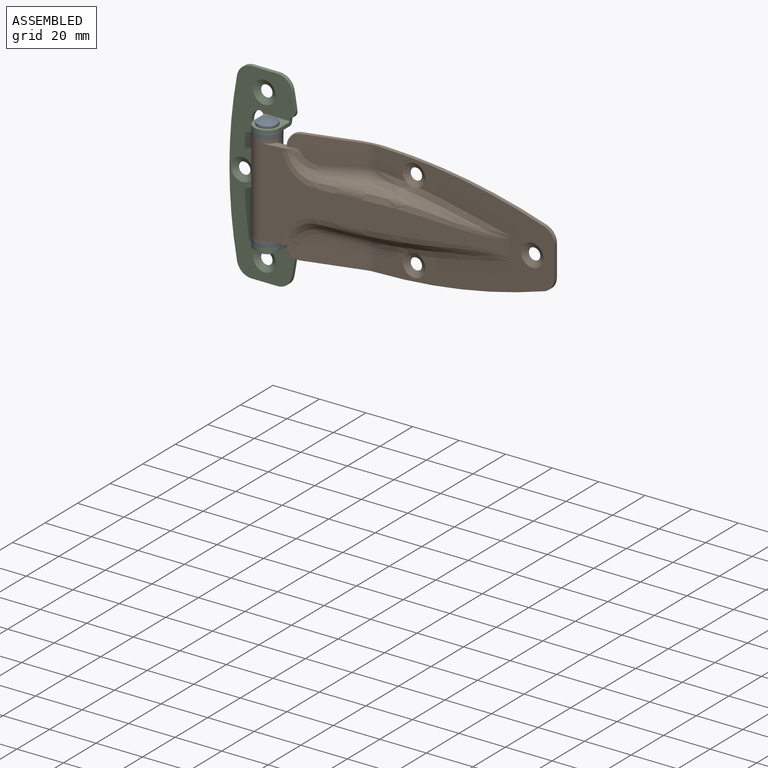
[diagram: assembled view]
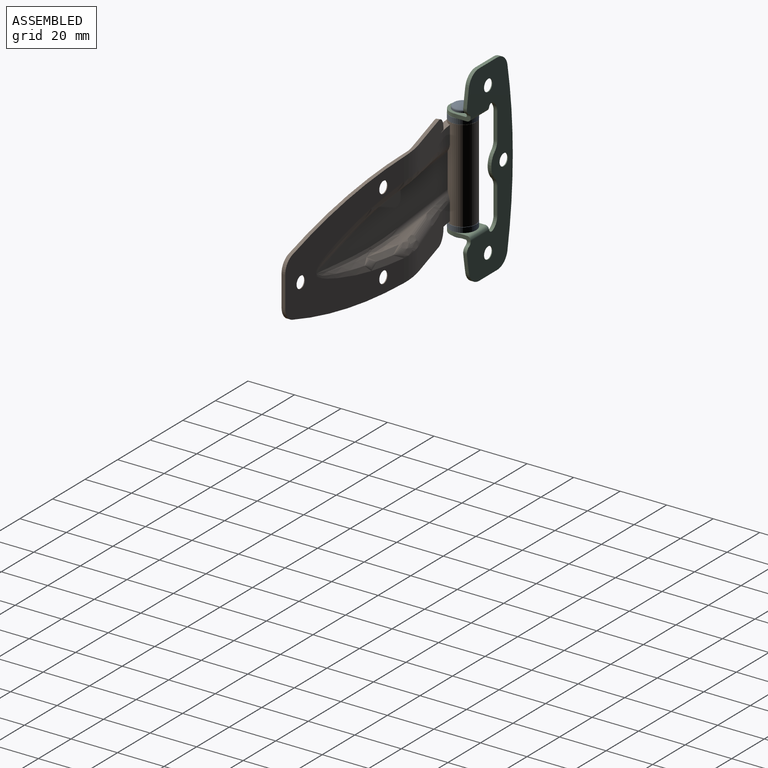
[diagram: assembled view, second angle]
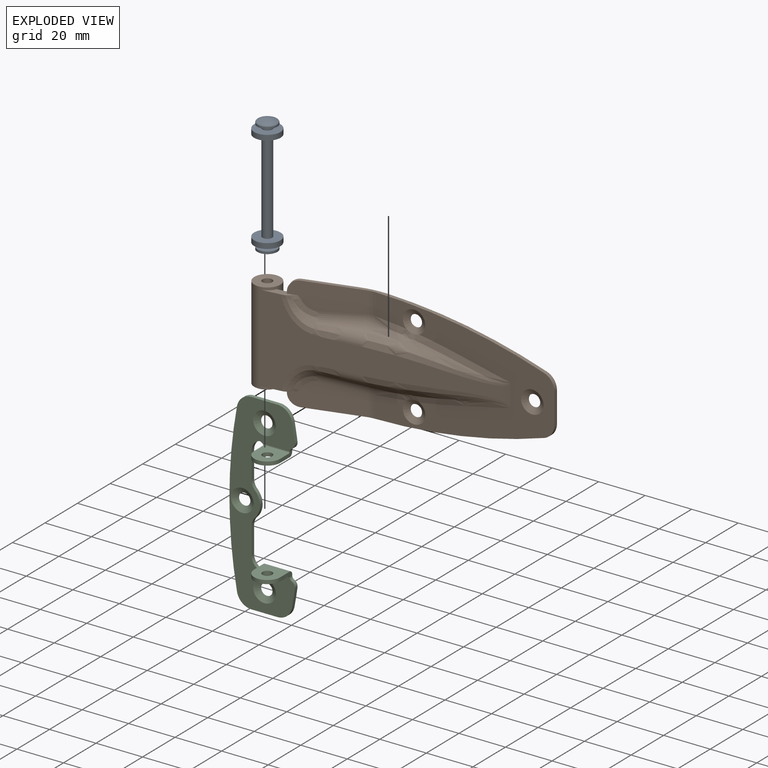
[diagram: exploded view]
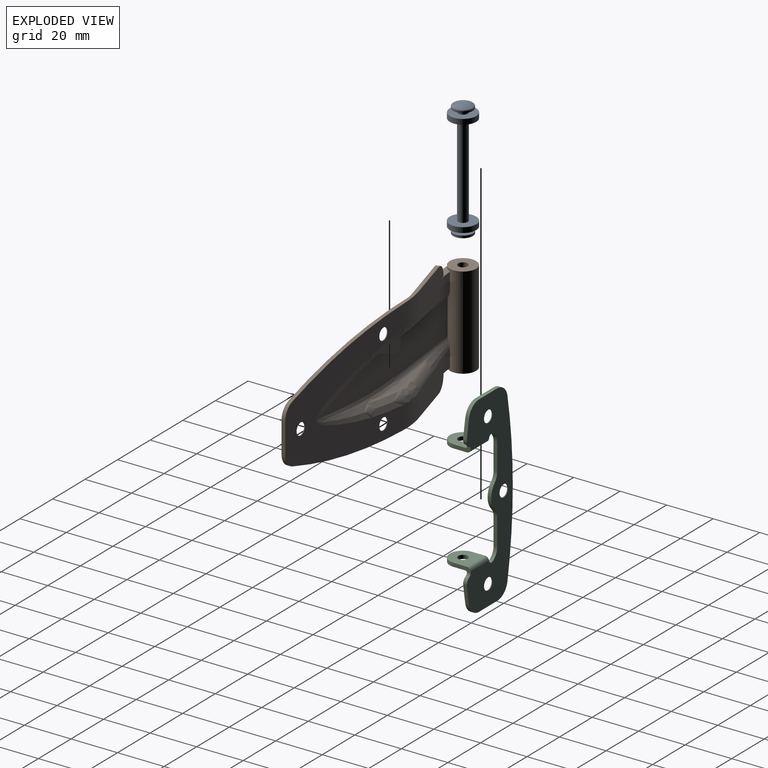
[diagram: exploded view, second angle]
ASSEMBLY  parts=3 mates=2
PART A: 16 faces, bbox 11.4x11.4x52 mm
  f0: plane 11.35x11.35mm, normal (0,0,1), area 87.4mm2, adj f1,f15
  f1: cylinder r=2.1mm len=39.81mm, axis (0,0,1), area 524.2mm2, adj f0,f2
  f2: plane 11.35x11.35mm, normal (0,0,-1), area 87.4mm2, adj f1,f3
  f3: cylinder r=5.68mm len=11.35mm, axis (0,0,1), area 80.4mm2, adj f2,f4
  f4: plane 11.35x11.35mm, normal (0,0,1), area 87.4mm2, adj f3,f5
  f5: cylinder r=2.1mm len=4.19mm, axis (0,0,1), area 21.7mm2, adj f4,f6
  f6: plane 8.53x8.53mm, normal (0,0,-1), area 43.4mm2, adj f5,f7
  f7: cylinder r=4.27mm len=8.53mm, axis (0,0,1), area 17.4mm2, adj f6,f8
  f8: torus R=3.63mm, axis (0,0,1), area 17.8mm2, adj f7,f9
  f9: sphere r=8.22mm, area 51.8mm2, adj f8
  f10: sphere r=8.22mm, area 61.7mm2, adj f11
  f11: cylinder r=4.27mm len=8.53mm, axis (0,0,1), area 27.2mm2, adj f10,f12
  f12: plane 8.53x8.53mm, normal (0,0,1), area 43.4mm2, adj f11,f13
  f13: cylinder r=2.1mm len=4.19mm, axis (0,0,1), area 21.7mm2, adj f12,f14
  f14: plane 11.35x11.35mm, normal (0,0,-1), area 87.4mm2, adj f13,f15
  f15: cylinder r=5.68mm len=11.35mm, axis (0,0,1), area 80.4mm2, adj f0,f14
PART B: 95 faces, bbox 125.3x17x49.4 mm
  f0: plane 96.14x14.23mm, normal (-0.11,0.99,0), area 1059.1mm2, adj f4,f23,f62,f63,f64,f65,f66,f67
  f1: plane 7.1x1.21mm, normal (-0.11,0.99,0), area 8.6mm2, adj f20,f23,f69,f80
  f2: plane 77.31x49.31mm, normal (0,-1,0), area 1594.2mm2, adj f6,f7,f8,f9,f12,f22,f37,f38
  f3: plane 28.66x11.03mm, normal (0.27,-0.96,0), area 274.2mm2, adj f17,f18,f21,f37,f39,f40,f49
  f4: plane 72.93x49.06mm, normal (0,1,0), area 1742.3mm2, adj f0,f6,f7,f8,f9,f10,f11,f12
  f5: plane 28.66x11.03mm, normal (0.27,-0.96,0), area 274.2mm2, adj f14,f15,f20,f38,f44,f45,f50
  f6: cylinder r=237.41mm len=74.54mm, axis (0,1,0), area 119.1mm2, adj f2,f4,f7,f14,f70
  f7: cylinder r=6.35mm len=6.03mm, axis (0,1,0), area 12.6mm2, adj f2,f4,f6,f8
  f8: plane 13.14x1.59mm, normal (1,0,0), area 20.9mm2, adj f2,f4,f7,f9
  f9: cylinder r=6.35mm len=6.03mm, axis (0,1,0), area 12.6mm2, adj f2,f4,f8,f12
  f10: cylinder r=2.55mm len=5.11mm, axis (0,1,0), area 5.1mm2, adj f4,f92
  f11: cylinder r=2.55mm len=5.11mm, axis (0,1,0), area 5.1mm2, adj f4,f93,f94
  f12: cylinder r=237.41mm len=74.54mm, axis (0,1,0), area 119.1mm2, adj f2,f4,f9,f18,f71
  f13: cylinder r=2.55mm len=5.11mm, axis (0,1,0), area 5.1mm2, adj f4,f90,f91
  f14: plane 27.66x8.36mm, normal (0,0,-1), area 41.3mm2, adj f5,f6,f16,f38,f50,f70
  f15: plane 1.53x0.79mm, normal (-0.96,-0.27,0), area 1.3mm2, adj f5,f16,f20,f50
  f16: plane 25.05x12.47mm, normal (-0.27,0.96,0), area 258.3mm2, adj f14,f15,f20,f50,f69,f70,f77,f78
  f17: plane 1.53x0.79mm, normal (-0.96,-0.27,0), area 1.3mm2, adj f3,f19,f21,f49
  f18: plane 27.66x8.36mm, normal (0,0,1), area 41.3mm2, adj f3,f12,f19,f37,f49,f71
  f19: plane 25.05x12.47mm, normal (-0.27,0.96,0), area 258.3mm2, adj f17,f18,f21,f49,f68,f71,f86,f87
  f20: plane 14.33x5.33mm, normal (0,0,-1), area 22.9mm2, adj f1,f5,f15,f16,f22,f23,f44,f55
  f21: plane 14.34x5.33mm, normal (0,0,1), area 22.9mm2, adj f3,f17,f19,f22,f23,f39,f57,f61
  f22: plane 99.93x37.63mm, normal (0.11,-0.99,0), area 1270.4mm2, adj f2,f20,f21,f23,f51,f52,f53,f54
  f23: cylinder r=5.64mm len=39.69mm, axis (0,0,-1), area 1206.4mm2, adj f0,f1,f20,f21,f22,f25,f26,f61
  f24: cylinder r=2.1mm len=39.69mm, axis (0,0,-1), area 522.5mm2, adj f25,f26
  f25: plane 11.27x11.27mm, normal (0,0,1), area 86mm2, adj f23,f24
  f26: plane 11.27x11.27mm, normal (0,0,-1), area 86mm2, adj f23,f24
  f27: bspline ~33.76x8.84mm, area 39.5mm2, adj f28,f62,f73,f74
  f28: plane 2.45x1.42mm, normal (-0.06,0.5,0.87), area 0.1mm2, adj f27,f29,f64,f75
  f29: plane 17.04x4.37mm, normal (-0.06,0.5,0.87), area 27.1mm2, adj f28,f63,f76,f77
  f30: bspline ~33.76x8.84mm, area 39.5mm2, adj f31,f66,f82,f83
  f31: plane 2.45x1.42mm, normal (-0.06,0.5,-0.87), area 0.1mm2, adj f30,f32,f67,f84
  f32: plane 17.04x4.37mm, normal (-0.06,0.5,-0.87), area 27.1mm2, adj f31,f65,f85,f86
  f33: plane 9.24x2.5mm, normal (0.06,-0.5,0.87), area 8.2mm2, adj f34,f40,f41,f60
  f34: bspline ~19x9.66mm, area 12.2mm2, adj f33,f42,f43,f58
  f35: plane 9.24x2.5mm, normal (0.06,-0.5,-0.87), area 8.2mm2, adj f36,f45,f46,f53
  f36: bspline ~19x9.66mm, area 12.2mm2, adj f35,f47,f48,f52
  f37: cylinder r=12.7mm len=9.33mm, axis (0,0,-1), area 32.4mm2, adj f2,f3,f18,f41,f42
  f38: cylinder r=12.7mm len=9.33mm, axis (0,0,-1), area 32.4mm2, adj f2,f5,f14,f46,f47
  f39: bspline ~15.19x11.05mm, area 43.5mm2, adj f3,f21,f40,f57
  f40: cylinder r=5.08mm len=18.25mm, axis (0.96,0.27,0.09), area 91.5mm2, adj f3,f33,f39,f41,f59
  f41: bspline ~4.45x2.69mm, area 6.7mm2, adj f33,f37,f40,f42
  f42: bspline ~4.43x2.65mm, area 8.5mm2, adj f34,f37,f41,f43
  f43: bspline ~57.9x14.59mm, area 190.8mm2, adj f2,f34,f42,f56,f94
  f44: bspline ~15.19x11.05mm, area 43.5mm2, adj f5,f20,f45,f55
  f45: cylinder r=5.08mm len=18.25mm, axis (0.96,0.27,-0.09), area 91.5mm2, adj f5,f35,f44,f46,f54
  f46: bspline ~4.45x2.69mm, area 6.7mm2, adj f35,f38,f45,f47
  f47: bspline ~4.43x2.65mm, area 8.5mm2, adj f36,f38,f46,f48
  f48: bspline ~66.59x16.32mm, area 190.8mm2, adj f2,f36,f47,f51,f91
  f49: cylinder r=5.08mm len=5.32mm, axis (-0.27,0.96,0), area 12.7mm2, adj f3,f17,f18,f19
  f50: cylinder r=5.08mm len=5.32mm, axis (-0.27,0.96,0), area 12.7mm2, adj f5,f14,f15,f16
  f51: bspline ~47.66x7.28mm, area 159.7mm2, adj f2,f22,f48,f52
  f52: bspline ~26.65x5.86mm, area 71.7mm2, adj f22,f36,f51,f53
  f53: cylinder r=5.08mm len=9.52mm, axis (0.99,0.11,0), area 49.5mm2, adj f22,f35,f52,f54
  f54: bspline ~9.52x4.4mm, area 46mm2, adj f22,f45,f53,f55
  f55: bspline ~15.52x14.61mm, area 68.2mm2, adj f20,f22,f44,f54
  f56: bspline ~52.79x7.68mm, area 159.7mm2, adj f2,f22,f43,f58
  f57: bspline ~15.52x14.61mm, area 68.2mm2, adj f21,f22,f39,f59
  f58: bspline ~26.65x5.86mm, area 71.7mm2, adj f22,f34,f56,f60
  f59: bspline ~9.52x4.4mm, area 46mm2, adj f22,f40,f57,f60
  f60: cylinder r=5.08mm len=9.52mm, axis (0.99,0.11,0), area 49.5mm2, adj f22,f33,f58,f59
  f61: plane 7.1x1.21mm, normal (-0.11,0.99,0), area 8.6mm2, adj f21,f23,f68,f89
  f62: bspline ~66x9.69mm, area 112.3mm2, adj f0,f27,f64,f72
  f63: cylinder r=2.54mm len=37.11mm, axis (0.99,0.11,0), area 86.2mm2, adj f0,f23,f29,f64,f78,f79,f80
  f64: cylinder r=2.54mm len=2.2mm, axis (0.99,0.11,0), area 0.1mm2, adj f0,f28,f62,f63
  f65: cylinder r=2.54mm len=37.11mm, axis (-0.99,-0.11,0), area 86.2mm2, adj f0,f23,f32,f67,f87,f88,f89
  f66: bspline ~71.29x9.59mm, area 112.3mm2, adj f0,f30,f67,f81
  f67: cylinder r=2.54mm len=2.2mm, axis (0.99,0.11,0), area 0.1mm2, adj f0,f31,f65,f66
  f68: cylinder r=43.18mm len=7.1mm, axis (0,0,1), area 47.2mm2, adj f19,f21,f61,f88
  f69: cylinder r=43.18mm len=7.1mm, axis (0,0,-1), area 47.2mm2, adj f1,f16,f20,f79
  f70: cylinder r=43.18mm len=11.71mm, axis (0,0,-1), area 114mm2, adj f4,f6,f14,f16,f74,f75,f76
  f71: cylinder r=43.18mm len=11.71mm, axis (0,0,1), area 114mm2, adj f4,f12,f18,f19,f83,f84,f85
  f72: bspline ~44.64x13.45mm, area 126.4mm2, adj f0,f4,f62,f73
  f73: bspline ~26.42x7.93mm, area 107.5mm2, adj f4,f27,f72,f74
  f74: bspline ~13.78x5.03mm, area 30.2mm2, adj f27,f70,f73,f75
  f75: bspline ~4.4x2.51mm, area 0.2mm2, adj f28,f70,f74,f76
  f76: bspline ~6.08x4.68mm, area 29.3mm2, adj f29,f70,f75,f77
  f77: cylinder r=5.08mm len=12.86mm, axis (0.96,0.27,-0.09), area 65.8mm2, adj f16,f29,f76,f78
  f78: bspline ~10.76x4.82mm, area 46.9mm2, adj f16,f63,f77,f79
  f79: bspline ~12.67x4.51mm, area 26.2mm2, adj f63,f69,f78,f80
  f80: cylinder r=5.08mm len=3.07mm, axis (0.99,0.11,0), area 5.1mm2, adj f1,f23,f63,f79
  f81: bspline ~44.64x13.45mm, area 126.4mm2, adj f0,f4,f66,f82
  f82: bspline ~26.36x7.92mm, area 107.5mm2, adj f4,f30,f81,f83
  f83: bspline ~13.71x5.02mm, area 30.2mm2, adj f30,f71,f82,f84
  f84: bspline ~4.4x2.51mm, area 0.2mm2, adj f31,f71,f83,f85
  f85: bspline ~6.08x4.68mm, area 29.3mm2, adj f32,f71,f84,f86
  f86: cylinder r=5.08mm len=12.86mm, axis (-0.96,-0.27,-0.09), area 65.8mm2, adj f19,f32,f85,f87
  f87: bspline ~10.76x4.82mm, area 46.9mm2, adj f19,f65,f86,f88
  f88: bspline ~12.67x4.51mm, area 26.2mm2, adj f65,f68,f87,f89
  f89: cylinder r=5.08mm len=3.07mm, axis (-0.99,-0.11,0), area 5.1mm2, adj f23,f61,f65,f88
  f90: cone r=2.55mm half-angle=61deg, axis (0,-1,0), area 48.6mm2, adj f2,f13,f91
  f91: bspline ~5.67x2.92mm, area 11.6mm2, adj f13,f48,f90
  f92: cone r=2.55mm half-angle=61deg, axis (0,-1,0), area 60.9mm2, adj f2,f10
  f93: cone r=2.55mm half-angle=61deg, axis (0,-1,0), area 48.6mm2, adj f2,f11,f94
  f94: bspline ~5.67x2.92mm, area 11.6mm2, adj f11,f43,f93
PART C: 46 faces, bbox 28.2x12.9x82.6 mm
  f0: plane 7.22x2.01mm, normal (1,0,0), area 11.7mm2, adj f3,f4,f6,f33,f36,f39,f42
  f1: plane 11.27x11.27mm, normal (0,0,1), area 99.6mm2, adj f19,f20,f35,f38,f40
  f2: plane 7.18x2.22mm, normal (-1,0,0), area 10.4mm2, adj f3,f4,f5,f29,f36,f39,f42
  f3: plane 11.27x11.27mm, normal (0,0,-1), area 99.6mm2, adj f0,f2,f36,f37,f39
  f4: plane 11.27x10.64mm, normal (0,0,1), area 92.5mm2, adj f0,f2,f36,f37,f42
  f5: plane 82.55x28.18mm, normal (0,-1,0), area 1057.2mm2, adj f2,f6,f7,f8,f9,f10,f11,f12
  f6: cylinder r=1.59mm len=1.62mm, axis (0,1,0), area 2.8mm2, adj f0,f5,f7,f33,f42
  f7: cylinder r=2.54mm len=2.64mm, axis (0,1,0), area 5.1mm2, adj f5,f6,f8,f33
  f8: cylinder r=200.87mm len=7.77mm, axis (0,1,0), area 12.5mm2, adj f5,f7,f9,f33
  f9: cylinder r=6.35mm len=6.25mm, axis (0,1,0), area 14mm2, adj f5,f8,f10,f33
  f10: plane 11.14x1.59mm, normal (0,0,1), area 17.7mm2, adj f5,f9,f11,f33
  f11: cylinder r=6.35mm len=6.25mm, axis (0,1,0), area 14mm2, adj f5,f10,f12,f33
  f12: cylinder r=200.87mm len=72.13mm, axis (0,1,0), area 115.1mm2, adj f5,f11,f13,f33
  f13: cylinder r=6.35mm len=6.25mm, axis (0,1,0), area 14mm2, adj f5,f12,f14,f33
  f14: plane 11.14x1.59mm, normal (0,0,-1), area 17.7mm2, adj f5,f13,f15,f33
  f15: cylinder r=6.35mm len=6.25mm, axis (0,1,0), area 14mm2, adj f5,f14,f16,f33
  f16: cylinder r=200.87mm len=7.77mm, axis (0,1,0), area 12.5mm2, adj f5,f15,f17,f33
  f17: cylinder r=2.54mm len=2.64mm, axis (0,1,0), area 5.1mm2, adj f5,f16,f18,f33
  f18: cylinder r=1.59mm len=1.62mm, axis (0,1,0), area 2.8mm2, adj f5,f17,f19,f33,f41
  f19: plane 7.22x2.01mm, normal (1,0,0), area 11.7mm2, adj f1,f18,f33,f34,f38,f40,f41
  f20: plane 7.18x2.22mm, normal (-1,0,0), area 10.4mm2, adj f1,f5,f21,f34,f38,f40,f41
  f21: cylinder r=1.59mm len=2.31mm, axis (0,1,0), area 5.1mm2, adj f5,f20,f22,f33,f40
  f22: cylinder r=5.08mm len=4.53mm, axis (0,1,0), area 8.9mm2, adj f5,f21,f23,f33
  f23: plane 11.41x1.59mm, normal (1,0,0), area 18.1mm2, adj f5,f22,f24,f33
  f24: cylinder r=5.08mm len=3.56mm, axis (0,1,0), area 6.3mm2, adj f5,f23,f25,f33
  f25: cylinder r=7.62mm len=10.69mm, axis (0,1,0), area 18.8mm2, adj f5,f24,f26,f33
  f26: cylinder r=5.08mm len=3.56mm, axis (0,1,0), area 6.3mm2, adj f5,f25,f27,f33
  f27: plane 11.41x1.59mm, normal (1,0,0), area 18.1mm2, adj f5,f26,f28,f33
  f28: cylinder r=5.08mm len=4.53mm, axis (0,1,0), area 8.9mm2, adj f5,f27,f29,f33
  f29: cylinder r=1.59mm len=2.31mm, axis (0,1,0), area 5.1mm2, adj f2,f5,f28,f33,f39
  f30: cylinder r=2.55mm len=5.11mm, axis (0,1,0), area 5.1mm2, adj f33,f44
  f31: cylinder r=2.55mm len=5.11mm, axis (0,1,0), area 5.1mm2, adj f33,f43
  f32: cylinder r=2.55mm len=5.11mm, axis (0,1,0), area 5.1mm2, adj f33,f45
  f33: plane 82.55x28.18mm, normal (0,1,0), area 1231.2mm2, adj f0,f6,f7,f8,f9,f10,f11,f12
  f34: plane 11.27x10.64mm, normal (0,0,-1), area 92.5mm2, adj f19,f20,f35,f38,f41
  f35: cylinder r=2.1mm len=4.19mm, axis (0,0,-1), area 20.9mm2, adj f1,f34
  f36: cylinder r=5.64mm len=11.27mm, axis (0,0,-1), area 28.1mm2, adj f0,f2,f3,f4
  f37: cylinder r=2.1mm len=4.19mm, axis (0,0,-1), area 20.9mm2, adj f3,f4
  f38: cylinder r=5.64mm len=11.27mm, axis (0,0,-1), area 28.1mm2, adj f1,f19,f20,f34
  f39: cylinder r=1.59mm len=11.32mm, axis (1,0,0), area 28.1mm2, adj f0,f2,f3,f29,f33
  f40: cylinder r=1.59mm len=11.32mm, axis (-1,0,0), area 28.1mm2, adj f1,f19,f20,f21,f33
  f41: cylinder r=0.64mm len=11.29mm, axis (1,0,0), area 11.2mm2, adj f5,f18,f19,f20,f34
  f42: cylinder r=0.64mm len=11.29mm, axis (-1,0,0), area 11.2mm2, adj f0,f2,f4,f5,f6
  f43: cone r=2.55mm half-angle=61deg, axis (0,-1,0), area 60.9mm2, adj f5,f31
  f44: cone r=2.55mm half-angle=61deg, axis (0,-1,0), area 60.9mm2, adj f5,f30
  f45: cone r=2.55mm half-angle=61deg, axis (0,-1,0), area 60.9mm2, adj f5,f32
PLACE A rot(axis=(0,0,1),0deg) t=(9.53,0,0)mm
PLACE B rot(axis=(0,0,1),0deg) t=(9.53,0,0)mm
PLACE C t=(9.52,0,0)mm
MATE revolute A.f1 <-> C.f35  axis (0,0,-1) through (14.68,-7.22,23.81)mm
MATE fastened B.f23 <-> A.f1  axis (0,0,-1) through (14.68,-7.22,0)mm
